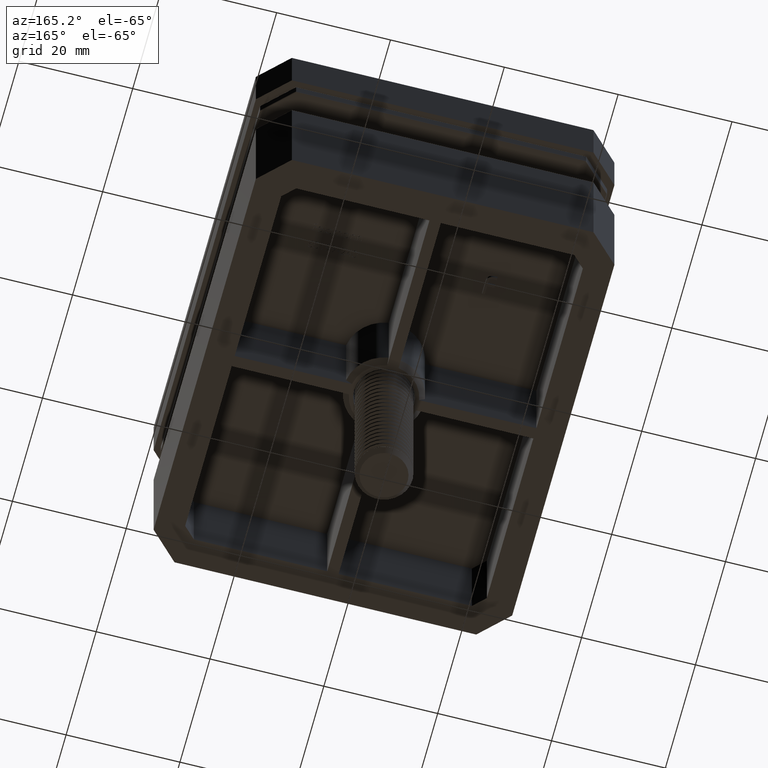
[diagram: clean part render]
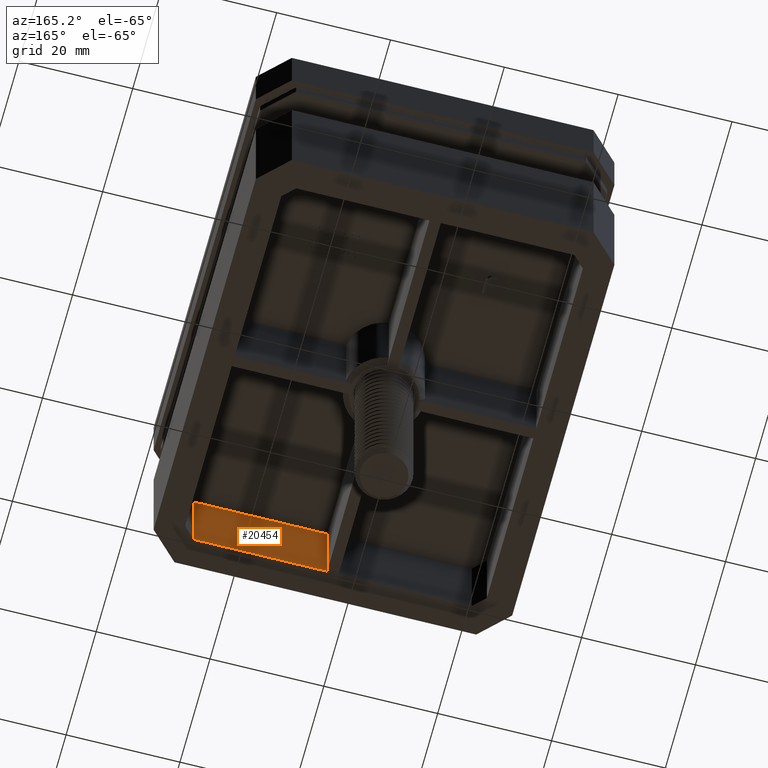
[diagram: same view with one face highlighted and labeled with its STEP entity id]
A machine part, auxiliary view. The second image highlights one B-rep face of the part: STEP entity #20454.
In plain terms, the highlighted planar face has unit normal (0, 1, 0).
Its self-contained STEP definition (entity closure, byte-faithful):
#266 = PLANE ( 'NONE',  #9564 ) ;
#695 = EDGE_CURVE ( 'NONE', #6389, #30649, #20347, .T. ) ;
#1204 = LINE ( 'NONE', #29906, #4544 ) ;
#3529 = EDGE_CURVE ( 'NONE', #27543, #30649, #19467, .T. ) ;
#4544 = VECTOR ( 'NONE', #27814, 1000.000000000000000 ) ;
#5722 = VECTOR ( 'NONE', #21454, 1000.000000000000000 ) ;
#6389 = VERTEX_POINT ( 'NONE', #20746 ) ;
#7223 = CARTESIAN_POINT ( 'NONE',  ( 24.42893218813451739, -33.99999999999998579, 20.00000000000000000 ) ) ;
#7415 = DIRECTION ( 'NONE',  ( 0.000000000000000000, 0.000000000000000000, 1.000000000000000000 ) ) ;
#7472 = CARTESIAN_POINT ( 'NONE',  ( -31.49999999999999289, -33.99999999999998579, 20.00000000000000000 ) ) ;
#8508 = ORIENTED_EDGE ( 'NONE', *, *, #18907, .T. ) ;
#9564 = AXIS2_PLACEMENT_3D ( 'NONE', #7472, #14727, #17124 ) ;
#10084 = VECTOR ( 'NONE', #7415, 1000.000000000000000 ) ;
#10968 = CARTESIAN_POINT ( 'NONE',  ( 1.000000000000007772, -33.99999999999998579, 0.000000000000000000 ) ) ;
#11981 = CARTESIAN_POINT ( 'NONE',  ( 24.42893218813451739, -33.99999999999998579, 0.000000000000000000 ) ) ;
#13823 = ORIENTED_EDGE ( 'NONE', *, *, #3529, .F. ) ;
#14431 = ORIENTED_EDGE ( 'NONE', *, *, #24959, .F. ) ;
#14727 = DIRECTION ( 'NONE',  ( 0.000000000000000000, 1.000000000000000000, 0.000000000000000000 ) ) ;
#16622 = CARTESIAN_POINT ( 'NONE',  ( 24.42893218813451739, -33.99999999999998579, 15.00000000000000000 ) ) ;
#17124 = DIRECTION ( 'NONE',  ( 0.000000000000000000, -0.000000000000000000, 1.000000000000000000 ) ) ;
#18367 = VERTEX_POINT ( 'NONE', #10968 ) ;
#18907 = EDGE_CURVE ( 'NONE', #18367, #6389, #1204, .T. ) ;
#19241 = CARTESIAN_POINT ( 'NONE',  ( 0.000000000000000000, -33.99999999999998579, 15.00000000000000000 ) ) ;
#19467 = LINE ( 'NONE', #7223, #10084 ) ;
#20347 = LINE ( 'NONE', #19241, #21098 ) ;
#20454 = ADVANCED_FACE ( 'NONE', ( #27264 ), #266, .T. ) ;
#20746 = CARTESIAN_POINT ( 'NONE',  ( 0.9999999999999967804, -33.99999999999998579, 15.00000000000000000 ) ) ;
#21098 = VECTOR ( 'NONE', #26356, 1000.000000000000000 ) ;
#21454 = DIRECTION ( 'NONE',  ( 1.000000000000000000, -0.000000000000000000, 0.000000000000000000 ) ) ;
#24535 = EDGE_LOOP ( 'NONE', ( #14431, #8508, #29656, #13823 ) ) ;
#24959 = EDGE_CURVE ( 'NONE', #18367, #27543, #28221, .T. ) ;
#26055 = CARTESIAN_POINT ( 'NONE',  ( 0.000000000000000000, -33.99999999999998579, -0.000000000000000000 ) ) ;
#26356 = DIRECTION ( 'NONE',  ( 1.000000000000000000, -0.000000000000000000, 0.000000000000000000 ) ) ;
#27264 = FACE_OUTER_BOUND ( 'NONE', #24535, .T. ) ;
#27543 = VERTEX_POINT ( 'NONE', #11981 ) ;
#27814 = DIRECTION ( 'NONE',  ( -0.000000000000000000, -0.000000000000000000, 1.000000000000000000 ) ) ;
#28221 = LINE ( 'NONE', #26055, #5722 ) ;
#29656 = ORIENTED_EDGE ( 'NONE', *, *, #695, .T. ) ;
#29906 = CARTESIAN_POINT ( 'NONE',  ( 0.9999999999999967804, -33.99999999999998579, -27.14557386280987217 ) ) ;
#30649 = VERTEX_POINT ( 'NONE', #16622 ) ;